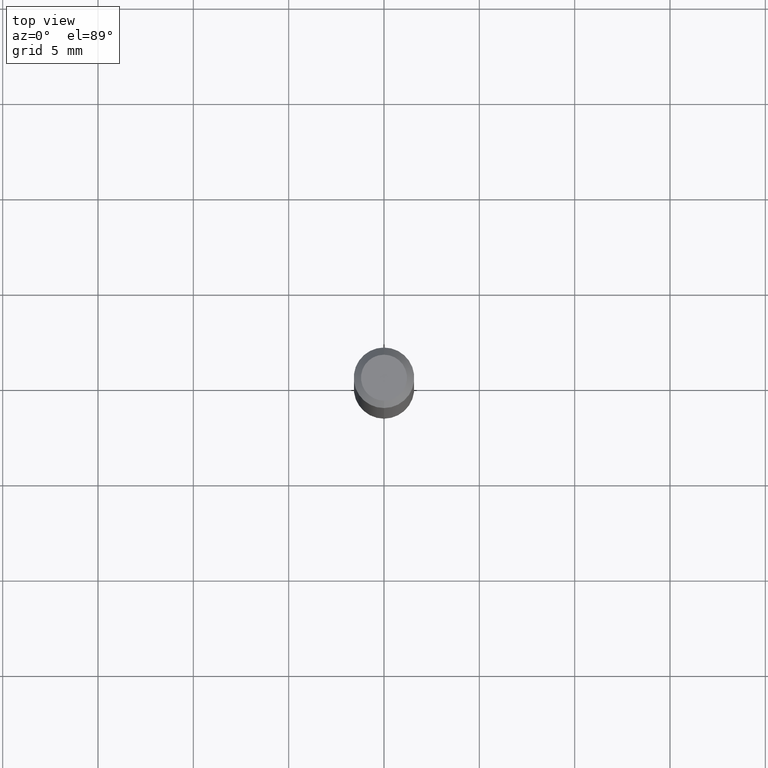
[diagram: clean part render]
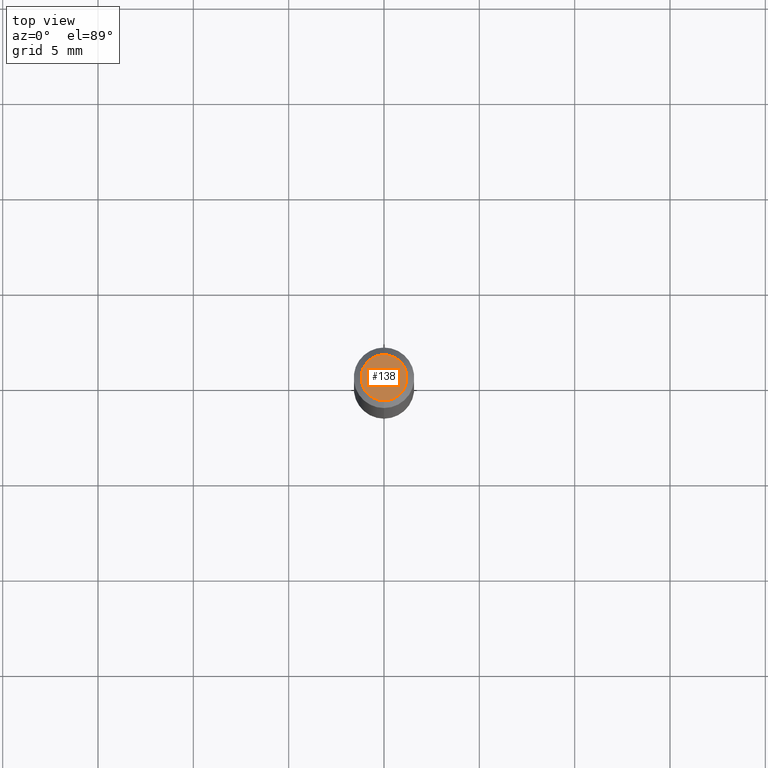
[diagram: same view with one face highlighted and labeled with its STEP entity id]
A machine part, top view. The second image highlights one B-rep face of the part: STEP entity #138.
In plain terms, the highlighted planar face has unit normal (0, -0, -1).
Its self-contained STEP definition (entity closure, byte-faithful):
#8 = CARTESIAN_POINT ( 'NONE',  ( 3.316907271900976096E-16, 0.04749999999999999362, -1.702750375905685625E-16 ) ) ;
#46 = DIRECTION ( 'NONE',  ( -6.982962677686266711E-15, -1.000000000000000000, 3.491460884089612684E-15 ) ) ;
#98 = CIRCLE ( 'NONE', #384, 0.04749999999999999362 ) ;
#106 = AXIS2_PLACEMENT_3D ( 'NONE', #8, #438, #403 ) ;
#118 = PLANE ( 'NONE',  #106 ) ;
#138 = ADVANCED_FACE ( 'NONE', ( #399 ), #118, .F. ) ;
#181 = EDGE_CURVE ( 'NONE', #377, #336, #490, .T. ) ;
#216 = EDGE_LOOP ( 'NONE', ( #221, #231 ) ) ;
#217 = CARTESIAN_POINT ( 'NONE',  ( -3.773273898774340269E-16, -0.04749999999999999362, 1.569831008016326844E-16 ) ) ;
#221 = ORIENTED_EDGE ( 'NONE', *, *, #395, .T. ) ;
#231 = ORIENTED_EDGE ( 'NONE', *, *, #181, .T. ) ;
#244 = CARTESIAN_POINT ( 'NONE',  ( 2.167013776414310302E-46, -3.093885158157417221E-32, -8.861291192623908455E-18 ) ) ;
#264 = AXIS2_PLACEMENT_3D ( 'NONE', #314, #391, #46 ) ;
#314 = CARTESIAN_POINT ( 'NONE',  ( 2.167013776414310302E-46, -3.093885158157417221E-32, -8.861291192623908455E-18 ) ) ;
#336 = VERTEX_POINT ( 'NONE', #407 ) ;
#365 = DIRECTION ( 'NONE',  ( -2.445483089663186682E-29, 3.491460884089612684E-15, 1.000000000000000000 ) ) ;
#377 = VERTEX_POINT ( 'NONE', #217 ) ;
#384 = AXIS2_PLACEMENT_3D ( 'NONE', #244, #365, #412 ) ;
#391 = DIRECTION ( 'NONE',  ( -2.445483089663186682E-29, 3.491460884089612684E-15, 1.000000000000000000 ) ) ;
#395 = EDGE_CURVE ( 'NONE', #336, #377, #98, .T. ) ;
#399 = FACE_OUTER_BOUND ( 'NONE', #216, .T. ) ;
#403 = DIRECTION ( 'NONE',  ( 6.982962677686265922E-15, 1.000000000000000000, -3.491460884089612684E-15 ) ) ;
#407 = CARTESIAN_POINT ( 'NONE',  ( 3.840629472727447874E-16, 0.04749999999999999362, -1.747056831868805136E-16 ) ) ;
#412 = DIRECTION ( 'NONE',  ( -6.982962677686266711E-15, -1.000000000000000000, 3.491460884089612684E-15 ) ) ;
#438 = DIRECTION ( 'NONE',  ( 2.445483089663186401E-29, -3.491460884089612684E-15, -1.000000000000000000 ) ) ;
#490 = CIRCLE ( 'NONE', #264, 0.04749999999999999362 ) ;